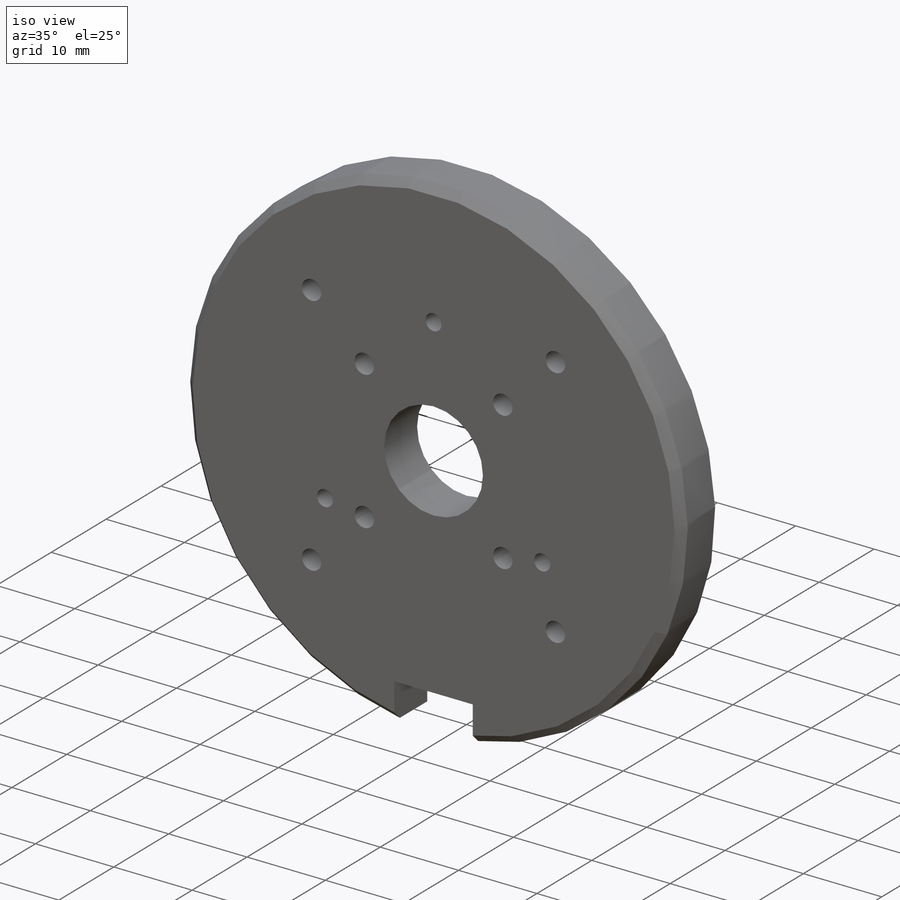
[diagram: iso view]
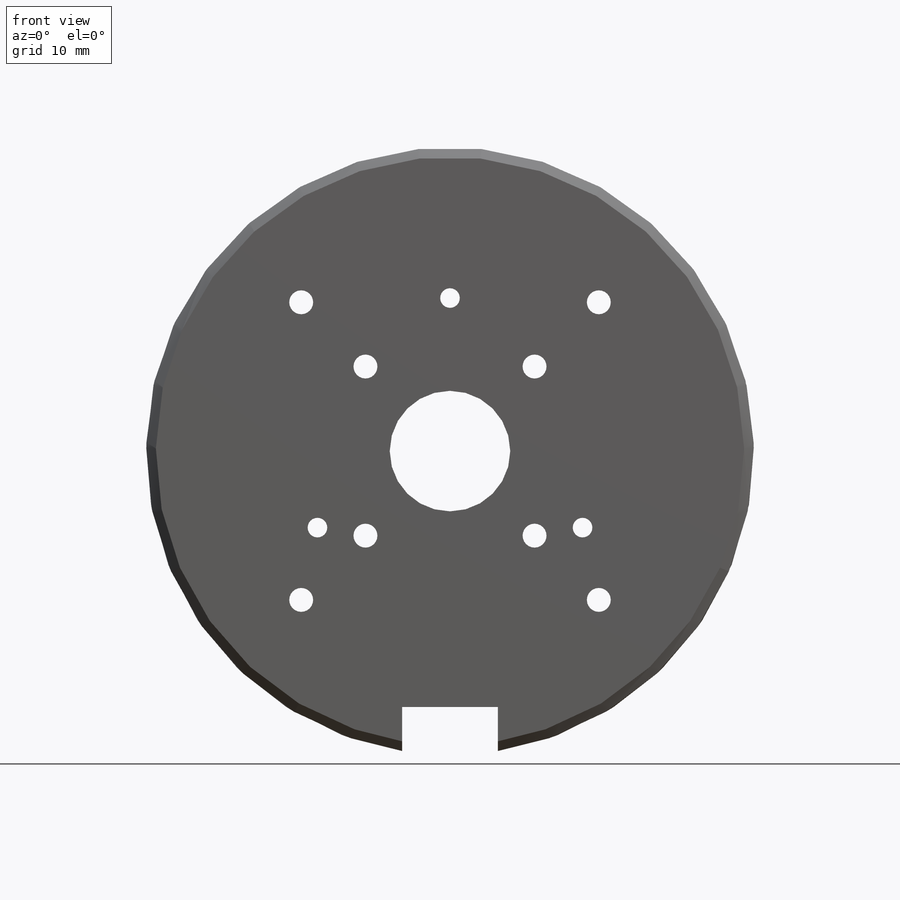
[diagram: front view]
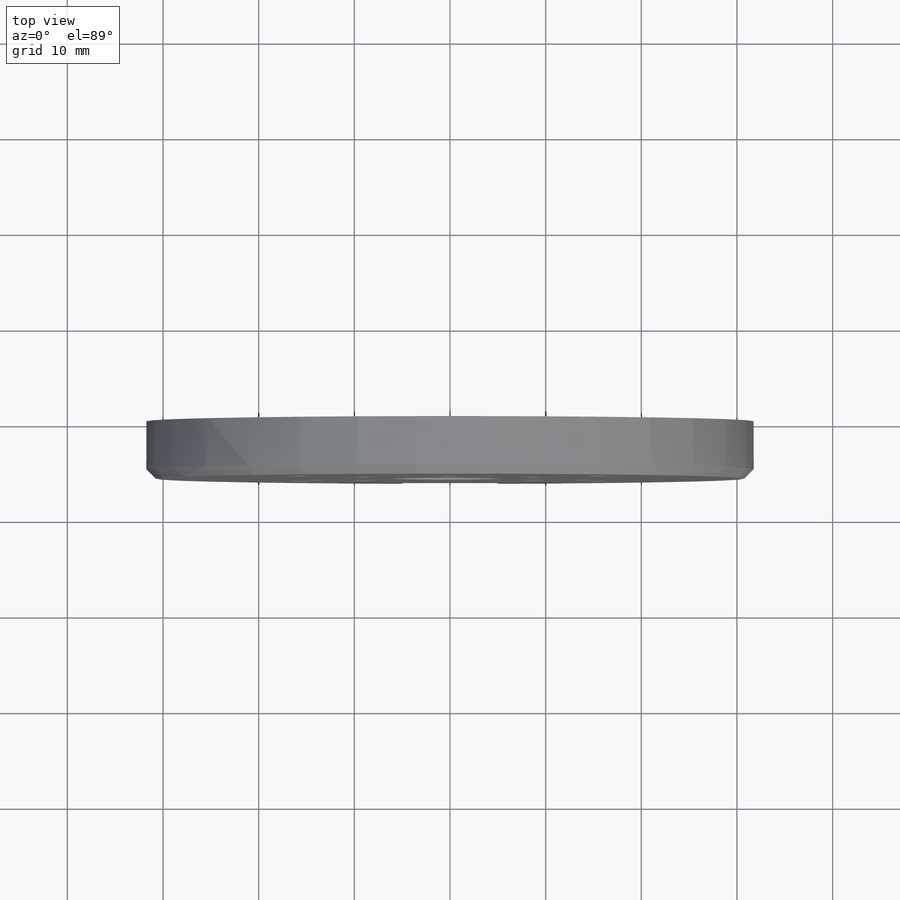
[diagram: top view]
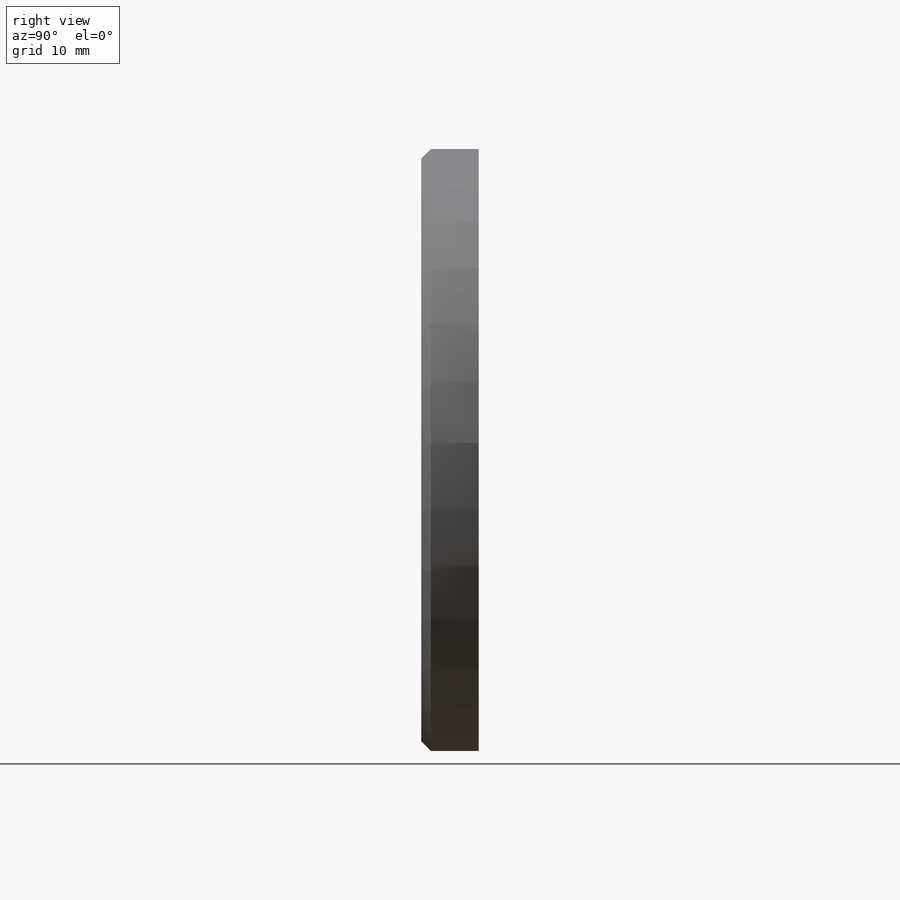
[diagram: right view]
SOLIDWORKS PART (.sldprt)
format: sldprt  version: not decoded by parser v0  size: 356,864 bytes
history: native  units: mm
features: thread x11, plane x3, cut_extrude x2, hole x2, material x1, sketch x1, extrude x1, chamfer x1 + 7 further entries (+8 scaffold rows collapsed)
feature tree (37):
  scaffold x8  (default folders/planes/origin — collapsed)
  material  "Сплав 2024"
  plane  "Спереди"
  plane  "Сверху"
  plane  "Справа"
  sketch  "Эскиз1"  dims[D1=63.5mm]
  extrude  "Бобышка-Вытянуть1"  Depth=6mm
  "Эскиз2"
  cut_extrude  "Вырез-Вытянуть1"  [1 undecoded]
  hole  "Отверстие обработанное метчиком M2.5x0.451"  [1 undecoded]
  "Эскиз4"
  "Эскиз3"  4=25.4mm Диаметр проходного сверла=2.05mm Глубина проходного сверла=6mm
  thread  "Отверстие резьбы1"  Diameter=2.5mm  [1 undecoded]
  thread  "Отверстие резьбы2"  Diameter=2.5mm  [1 undecoded]
  thread  "Отверстие резьбы3"  Diameter=2.5mm  [1 undecoded]
  "Эскиз5"
  hole  "Отверстие обработанное метчиком M3x0.51"  [1 undecoded]
  "Эскиз7"
  "Эскиз6"  4=25.4mm Диаметр проходного сверла=2.5mm Глубина проходного сверла=6mm
  thread  "Отверстие резьбы4"  Diameter=3mm  [1 undecoded]
  thread  "Отверстие резьбы5"  Diameter=3mm  [1 undecoded]
  thread  "Отверстие резьбы6"  Diameter=3mm  [1 undecoded]
  thread  "Отверстие резьбы7"  Diameter=3mm  [1 undecoded]
  thread  "Отверстие резьбы8"  Diameter=3mm  [1 undecoded]
  thread  "Отверстие резьбы9"  Diameter=3mm  [1 undecoded]
  thread  "Отверстие резьбы10"  Diameter=3mm  [1 undecoded]
  thread  "Отверстие резьбы11"  Diameter=3mm  [1 undecoded]
  "Эскиз8"
  cut_extrude  "Вырез-Вытянуть2"  [1 undecoded]
  chamfer  "Фаска1"  Distance=1mm Angle=45deg
decode coverage: 14 of 18 modeling features carry decoded parameters; 7 rows unclassified (native names shown)
note: 15 parameter values undecoded
summary: no parameter record found for 4 features
note: suppression state not decoded; provenance and decode notes live in map.json
